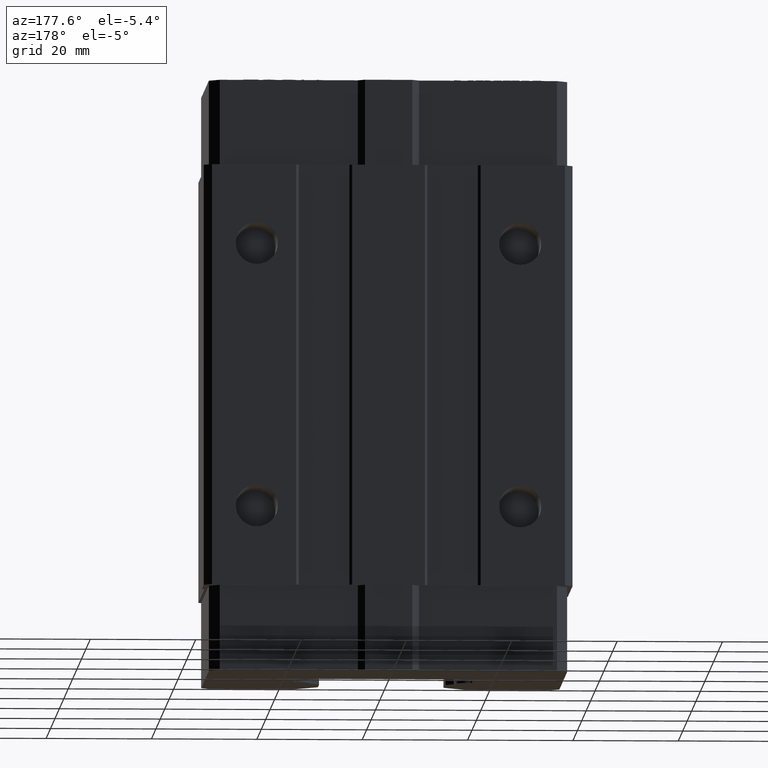
[diagram: clean part render]
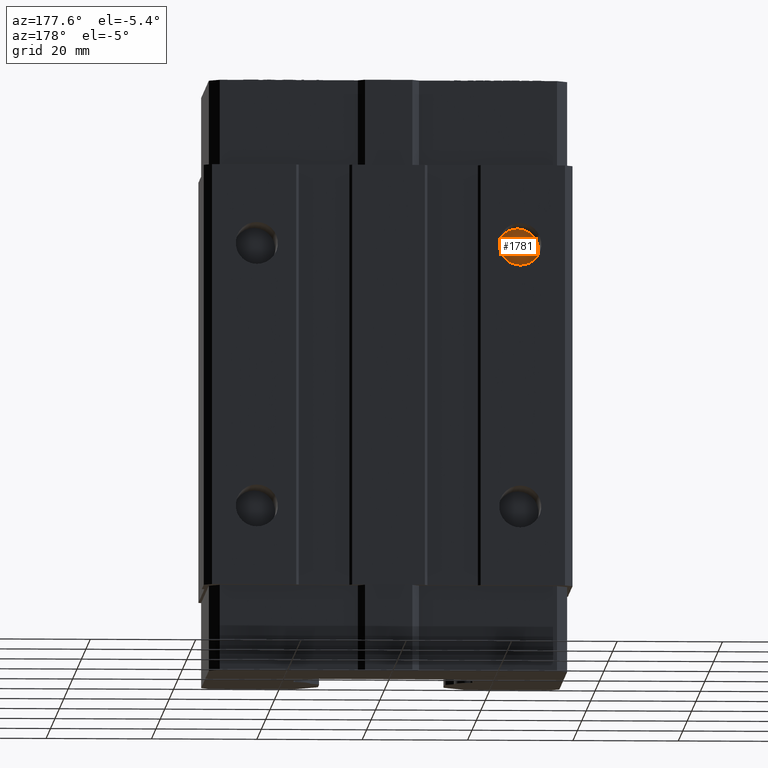
[diagram: same view with one face highlighted and labeled with its STEP entity id]
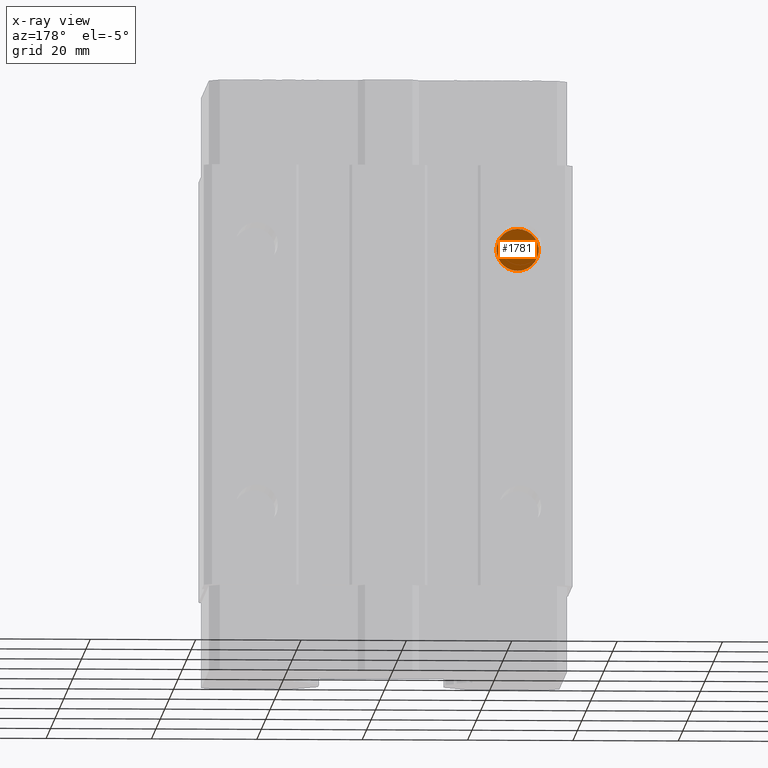
[diagram: x-ray of the same camera — body ghosted, the highlighted face saturated]
A machine part, auxiliary view. The second image highlights one B-rep face of the part: STEP entity #1781.
The next image is the same camera in x-ray: the body ghosted, the highlighted face saturated — about 0% of this face is hidden behind the body in this view.
In plain terms, the highlighted planar face has unit normal (0, 1, 0).
Its self-contained STEP definition (entity closure, byte-faithful):
#1737 = EDGE_CURVE ( 'NONE', #1738, #1739, #5601, .T. ) ;
#1738 = VERTEX_POINT ( 'NONE', #5597 ) ;
#1739 = VERTEX_POINT ( 'NONE', #5596 ) ;
#1781 = ADVANCED_FACE ( 'NONE', ( #5715 ), #5714, .T. ) ;
#1782 = EDGE_LOOP ( 'NONE', ( #1783, #1786 ) ) ;
#1783 = ORIENTED_EDGE ( 'NONE', *, *, #1784, .T. ) ;
#1784 = EDGE_CURVE ( 'NONE', #1739, #1738, #5708, .T. ) ;
#1786 = ORIENTED_EDGE ( 'NONE', *, *, #1737, .T. ) ;
#5596 = CARTESIAN_POINT ( 'NONE',  ( -25.00000000000000000, 6.999999999999999100, 29.00000000000000000 ) ) ;
#5597 = CARTESIAN_POINT ( 'NONE',  ( -25.00000000000000000, 6.999999999999999100, 21.00000000000000000 ) ) ;
#5598 = DIRECTION ( 'NONE',  ( 0.0000000000000000000, 0.0000000000000000000, 1.000000000000000000 ) ) ;
#5599 = DIRECTION ( 'NONE',  ( 0.0000000000000000000, 1.000000000000000000, 0.0000000000000000000 ) ) ;
#5600 = AXIS2_PLACEMENT_3D ( 'NONE', #5607, #5599, #5598 ) ;
#5601 = CIRCLE ( 'NONE', #5600, 4.000000000000000000 ) ;
#5607 = CARTESIAN_POINT ( 'NONE',  ( -25.00000000000000000, 6.999999999999999100, 25.00000000000000000 ) ) ;
#5704 = DIRECTION ( 'NONE',  ( 0.0000000000000000000, 0.0000000000000000000, 1.000000000000000000 ) ) ;
#5705 = DIRECTION ( 'NONE',  ( 0.0000000000000000000, 1.000000000000000000, 0.0000000000000000000 ) ) ;
#5706 = CARTESIAN_POINT ( 'NONE',  ( -25.00000000000000000, 6.999999999999999100, 25.00000000000000000 ) ) ;
#5707 = AXIS2_PLACEMENT_3D ( 'NONE', #5706, #5705, #5704 ) ;
#5708 = CIRCLE ( 'NONE', #5707, 4.000000000000000000 ) ;
#5709 = DIRECTION ( 'NONE',  ( 0.0000000000000000000, 0.0000000000000000000, 1.000000000000000000 ) ) ;
#5710 = DIRECTION ( 'NONE',  ( 0.0000000000000000000, 1.000000000000000000, 0.0000000000000000000 ) ) ;
#5711 = CARTESIAN_POINT ( 'NONE',  ( 34.50000000000000000, 7.000000000000000000, -40.00000000000000000 ) ) ;
#5712 = AXIS2_PLACEMENT_3D ( 'NONE', #5711, #5710, #5709 ) ;
#5714 = PLANE ( 'NONE',  #5712 ) ;
#5715 = FACE_OUTER_BOUND ( 'NONE', #1782, .T. ) ;